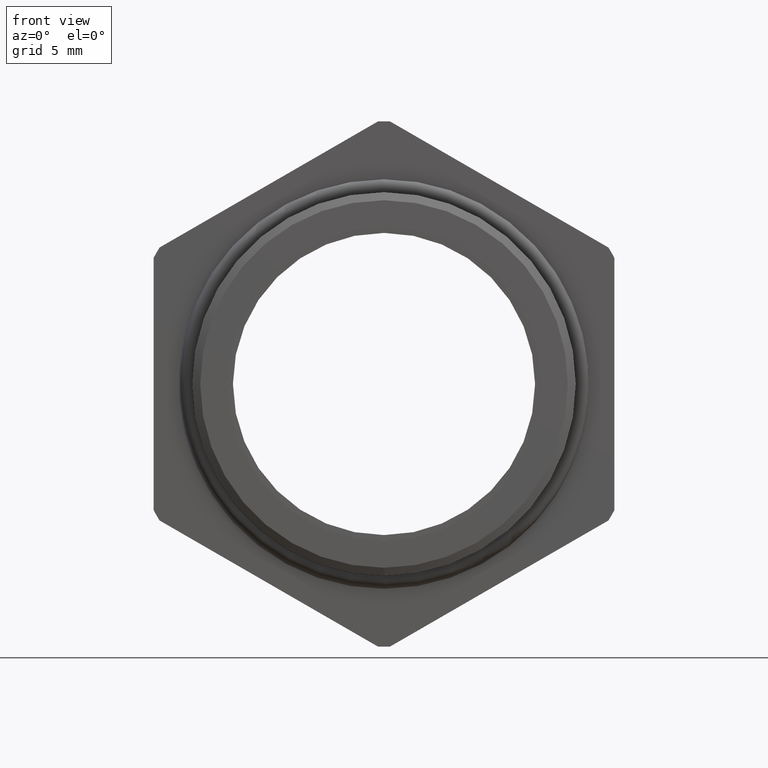
[diagram: clean part render]
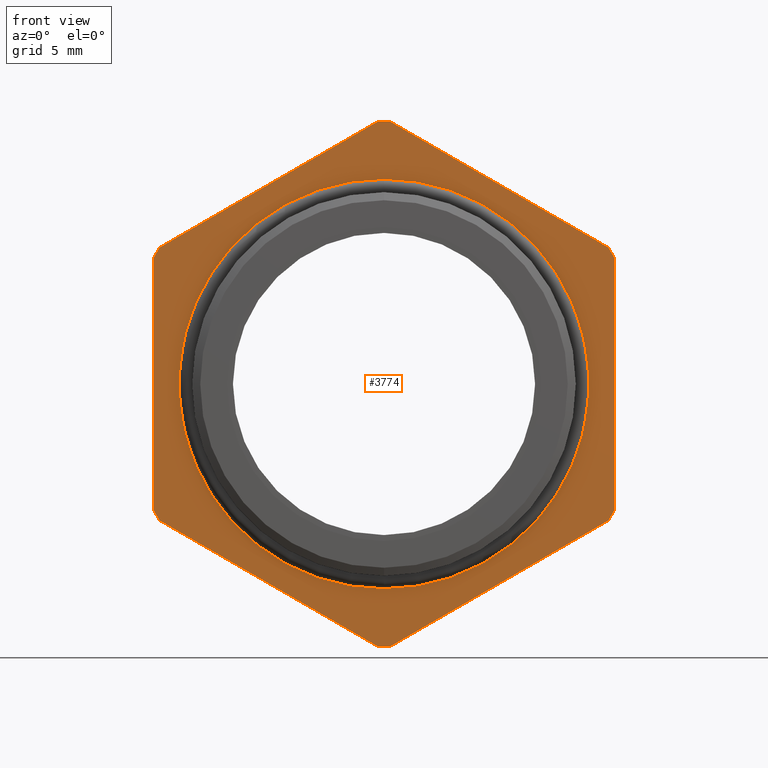
[diagram: same view with one face highlighted and labeled with its STEP entity id]
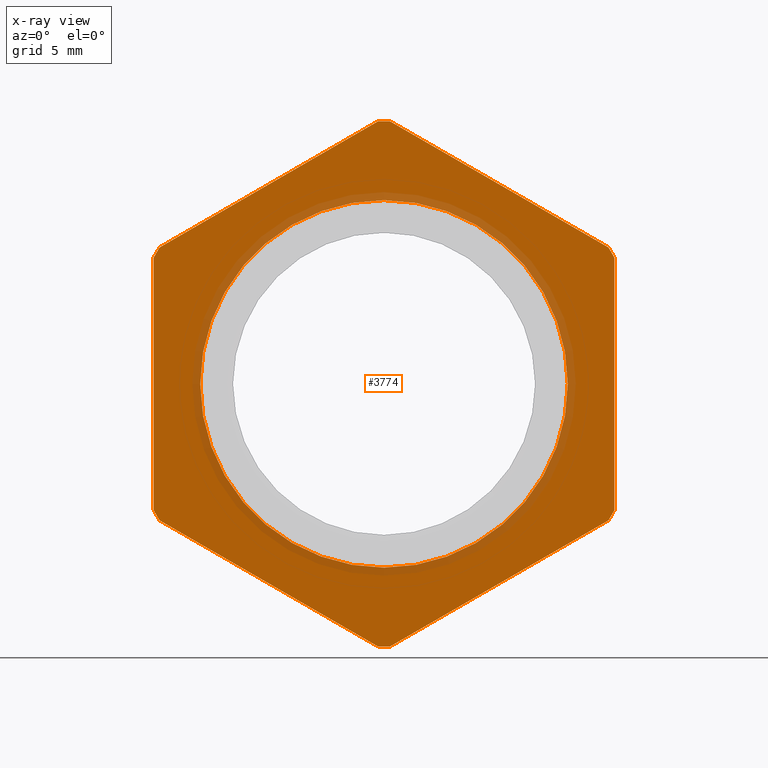
[diagram: x-ray of the same camera — body ghosted, the highlighted face saturated]
A machine part, front view. The second image highlights one B-rep face of the part: STEP entity #3774.
The next image is the same camera in x-ray: the body ghosted, the highlighted face saturated — about 12% of this face is hidden behind the body in this view.
In plain terms, the highlighted planar face has unit normal (0, -1, -0).
Its self-contained STEP definition (entity closure, byte-faithful):
#1259 = CARTESIAN_POINT ( 'NONE',  ( 0.3949999999999999100, 0.2775548905829479700, 0.2162061284977834200 ) ) ;
#1312 = DIRECTION ( 'NONE',  ( 0.0000000000000000000, 0.0000000000000000000, -1.000000000000000000 ) ) ;
#1313 = DIRECTION ( 'NONE',  ( -0.0000000000000000000, -1.000000000000000000, -0.0000000000000000000 ) ) ;
#1314 = CARTESIAN_POINT ( 'NONE',  ( 0.0000000000000000000, 0.2775548905829479700, 0.0000000000000000000 ) ) ;
#1315 = AXIS2_PLACEMENT_3D ( 'NONE', #1314, #1313, #1312 ) ;
#1316 = CIRCLE ( 'NONE', #1315, 0.4502999999999999800 ) ;
#1317 = CARTESIAN_POINT ( 'NONE',  ( 0.01026000026703700000, 0.2775548905829479700, -0.4501830987437449600 ) ) ;
#1336 = CARTESIAN_POINT ( 'NONE',  ( 0.0000000000000000000, 0.2775548905829479700, 0.0000000000000000000 ) ) ;
#1337 = CARTESIAN_POINT ( 'NONE',  ( 0.3950000000000000200, 0.2775548905829479700, -0.2162061284977832000 ) ) ;
#1349 = CARTESIAN_POINT ( 'NONE',  ( 0.3847399997329629100, 0.2775548905829479700, -0.2339769702459617300 ) ) ;
#1361 = CARTESIAN_POINT ( 'NONE',  ( -0.3949999999999999600, 0.2775548905829479700, -0.2162061284977833100 ) ) ;
#1377 = CARTESIAN_POINT ( 'NONE',  ( 0.3847399997329628600, 0.2775548905829479700, 0.2339769702459617900 ) ) ;
#1393 = DIRECTION ( 'NONE',  ( 0.0000000000000000000, 0.0000000000000000000, -1.000000000000000000 ) ) ;
#1394 = DIRECTION ( 'NONE',  ( -0.0000000000000000000, -1.000000000000000000, -0.0000000000000000000 ) ) ;
#1395 = AXIS2_PLACEMENT_3D ( 'NONE', #1336, #1394, #1393 ) ;
#1396 = CIRCLE ( 'NONE', #1395, 0.4502999999999999800 ) ;
#1409 = DIRECTION ( 'NONE',  ( 0.0000000000000000000, 0.0000000000000000000, -1.000000000000000000 ) ) ;
#1410 = DIRECTION ( 'NONE',  ( -0.0000000000000000000, -1.000000000000000000, -0.0000000000000000000 ) ) ;
#1411 = CARTESIAN_POINT ( 'NONE',  ( 0.0000000000000000000, 0.2775548905829479700, 0.0000000000000000000 ) ) ;
#1412 = AXIS2_PLACEMENT_3D ( 'NONE', #1411, #1410, #1409 ) ;
#1413 = CIRCLE ( 'NONE', #1412, 0.4502999999999999800 ) ;
#1414 = CARTESIAN_POINT ( 'NONE',  ( -0.3847399997329630200, 0.2775548905829479700, -0.2339769702459614800 ) ) ;
#1435 = CARTESIAN_POINT ( 'NONE',  ( -0.01026000026703716000, 0.2775548905829479700, -0.4501830987437449600 ) ) ;
#1436 = DIRECTION ( 'NONE',  ( 0.0000000000000000000, 0.0000000000000000000, -1.000000000000000000 ) ) ;
#1437 = DIRECTION ( 'NONE',  ( -0.0000000000000000000, -1.000000000000000000, -0.0000000000000000000 ) ) ;
#1438 = CARTESIAN_POINT ( 'NONE',  ( 0.0000000000000000000, 0.2775548905829479700, 0.0000000000000000000 ) ) ;
#1439 = AXIS2_PLACEMENT_3D ( 'NONE', #1438, #1437, #1436 ) ;
#1440 = CIRCLE ( 'NONE', #1439, 0.4502999999999999800 ) ;
#1477 = DIRECTION ( 'NONE',  ( 0.0000000000000000000, 0.0000000000000000000, -1.000000000000000000 ) ) ;
#1478 = DIRECTION ( 'NONE',  ( -0.0000000000000000000, -1.000000000000000000, -0.0000000000000000000 ) ) ;
#1479 = CARTESIAN_POINT ( 'NONE',  ( 0.0000000000000000000, 0.2775548905829479700, 0.0000000000000000000 ) ) ;
#1480 = AXIS2_PLACEMENT_3D ( 'NONE', #1479, #1478, #1477 ) ;
#1481 = CIRCLE ( 'NONE', #1480, 0.4502999999999999800 ) ;
#1482 = CARTESIAN_POINT ( 'NONE',  ( 0.0000000000000000000, 0.2775548905829479700, -0.4502999999999999800 ) ) ;
#1497 = DIRECTION ( 'NONE',  ( -2.994746533912406200E-016, 0.0000000000000000000, 1.000000000000000000 ) ) ;
#1498 = VECTOR ( 'NONE', #1497, 39.37007874015748100 ) ;
#1507 = CARTESIAN_POINT ( 'NONE',  ( 0.3949999999999999600, 0.2775548905829479700, 2.395797227129924000E-017 ) ) ;
#1508 = LINE ( 'NONE', #1507, #1498 ) ;
#1521 = DIRECTION ( 'NONE',  ( 0.8660254037844386000, 0.0000000000000000000, 0.4999999999999998300 ) ) ;
#1522 = VECTOR ( 'NONE', #1521, 39.37007874015748900 ) ;
#1523 = CARTESIAN_POINT ( 'NONE',  ( 0.4337499999999999700, 0.2775548905829479700, -0.2056810333988042500 ) ) ;
#1530 = LINE ( 'NONE', #1523, #1522 ) ;
#1554 = DIRECTION ( 'NONE',  ( 0.0000000000000000000, 0.0000000000000000000, -1.000000000000000000 ) ) ;
#1555 = DIRECTION ( 'NONE',  ( -0.0000000000000000000, -1.000000000000000000, -0.0000000000000000000 ) ) ;
#1556 = CARTESIAN_POINT ( 'NONE',  ( 0.0000000000000000000, 0.2775548905829479700, 0.0000000000000000000 ) ) ;
#1557 = AXIS2_PLACEMENT_3D ( 'NONE', #1556, #1555, #1554 ) ;
#1558 = CIRCLE ( 'NONE', #1557, 0.4502999999999999800 ) ;
#1559 = CARTESIAN_POINT ( 'NONE',  ( -0.01026000026703719400, 0.2775548905829479700, 0.4501830987437449000 ) ) ;
#1570 = CARTESIAN_POINT ( 'NONE',  ( 0.01026000026703743400, 0.2775548905829479700, 0.4501830987437449600 ) ) ;
#1581 = LINE ( 'NONE', #1626, #1625 ) ;
#1596 = DIRECTION ( 'NONE',  ( 0.0000000000000000000, 0.0000000000000000000, -1.000000000000000000 ) ) ;
#1597 = VECTOR ( 'NONE', #1596, 39.37007874015748100 ) ;
#1598 = CARTESIAN_POINT ( 'NONE',  ( -0.3949999999999999600, 0.2775548905829479700, 0.0000000000000000000 ) ) ;
#1599 = LINE ( 'NONE', #1598, #1597 ) ;
#1607 = DIRECTION ( 'NONE',  ( -0.8660254037844386000, 0.0000000000000000000, -0.4999999999999998300 ) ) ;
#1608 = VECTOR ( 'NONE', #1607, 39.37007874015748900 ) ;
#1615 = CARTESIAN_POINT ( 'NONE',  ( 0.03875000000000002700, 0.2775548905829479700, 0.4784790355909024400 ) ) ;
#1616 = LINE ( 'NONE', #1615, #1608 ) ;
#1624 = DIRECTION ( 'NONE',  ( 0.8660254037844386000, 0.0000000000000000000, -0.5000000000000002200 ) ) ;
#1625 = VECTOR ( 'NONE', #1624, 39.37007874015747400 ) ;
#1626 = CARTESIAN_POINT ( 'NONE',  ( 0.03874999999999989600, 0.2775548905829479700, -0.4784790355909022700 ) ) ;
#1629 = CARTESIAN_POINT ( 'NONE',  ( 0.4337500000000000200, 0.2775548905829479700, 0.2056810333988042200 ) ) ;
#1630 = LINE ( 'NONE', #1629, #1639 ) ;
#1638 = DIRECTION ( 'NONE',  ( -0.8660254037844386000, 0.0000000000000000000, 0.5000000000000002200 ) ) ;
#1639 = VECTOR ( 'NONE', #1638, 39.37007874015747400 ) ;
#1685 = DIRECTION ( 'NONE',  ( 0.0000000000000000000, 0.0000000000000000000, -1.000000000000000000 ) ) ;
#1686 = DIRECTION ( 'NONE',  ( -0.0000000000000000000, -1.000000000000000000, -0.0000000000000000000 ) ) ;
#1687 = CARTESIAN_POINT ( 'NONE',  ( 0.0000000000000000000, 0.2775548905829479700, 0.0000000000000000000 ) ) ;
#1688 = AXIS2_PLACEMENT_3D ( 'NONE', #1687, #1686, #1685 ) ;
#1689 = CIRCLE ( 'NONE', #1688, 0.4502999999999999800 ) ;
#1691 = CARTESIAN_POINT ( 'NONE',  ( -0.3949999999999999600, 0.2775548905829479700, 0.2162061284977833100 ) ) ;
#1703 = CARTESIAN_POINT ( 'NONE',  ( -0.3847399997329628000, 0.2775548905829479700, 0.2339769702459618100 ) ) ;
#3008 = CARTESIAN_POINT ( 'NONE',  ( 3.857637417314162700E-017, 0.2775548905829479700, 0.3150000000000000000 ) ) ;
#3009 = CARTESIAN_POINT ( 'NONE',  ( 0.0000000000000000000, 0.2775548905829479700, -0.3150000000000000000 ) ) ;
#3010 = DIRECTION ( 'NONE',  ( 0.0000000000000000000, 0.0000000000000000000, -1.000000000000000000 ) ) ;
#3011 = DIRECTION ( 'NONE',  ( -0.0000000000000000000, -1.000000000000000000, -0.0000000000000000000 ) ) ;
#3012 = CARTESIAN_POINT ( 'NONE',  ( 0.0000000000000000000, 0.2775548905829479700, 0.0000000000000000000 ) ) ;
#3013 = AXIS2_PLACEMENT_3D ( 'NONE', #3012, #3011, #3010 ) ;
#3014 = CIRCLE ( 'NONE', #3013, 0.3150000000000000000 ) ;
#3762 = ORIENTED_EDGE ( 'NONE', *, *, #4764, .T. ) ;
#3763 = ORIENTED_EDGE ( 'NONE', *, *, #4810, .T. ) ;
#3764 = ORIENTED_EDGE ( 'NONE', *, *, #4749, .T. ) ;
#3765 = ORIENTED_EDGE ( 'NONE', *, *, #4664, .T. ) ;
#3774 = ADVANCED_FACE ( 'NONE', ( #5822, #5821 ), #5820, .T. ) ;
#3775 = EDGE_LOOP ( 'NONE', ( #3776, #3777 ) ) ;
#3776 = ORIENTED_EDGE ( 'NONE', *, *, #6100, .F. ) ;
#3777 = ORIENTED_EDGE ( 'NONE', *, *, #3820, .F. ) ;
#3778 = EDGE_LOOP ( 'NONE', ( #3834, #3835, #3836, #3837, #3838, #3762, #3763, #3764, #3765, #3779, #3780, #3781, #3782 ) ) ;
#3779 = ORIENTED_EDGE ( 'NONE', *, *, #4758, .T. ) ;
#3780 = ORIENTED_EDGE ( 'NONE', *, *, #4682, .T. ) ;
#3781 = ORIENTED_EDGE ( 'NONE', *, *, #4623, .T. ) ;
#3782 = ORIENTED_EDGE ( 'NONE', *, *, #4722, .T. ) ;
#3820 = EDGE_CURVE ( 'NONE', #6102, #6101, #5873, .T. ) ;
#3834 = ORIENTED_EDGE ( 'NONE', *, *, #4642, .T. ) ;
#3835 = ORIENTED_EDGE ( 'NONE', *, *, #4709, .T. ) ;
#3836 = ORIENTED_EDGE ( 'NONE', *, *, #4691, .T. ) ;
#3837 = ORIENTED_EDGE ( 'NONE', *, *, #4779, .T. ) ;
#3838 = ORIENTED_EDGE ( 'NONE', *, *, #4737, .T. ) ;
#4586 = VERTEX_POINT ( 'NONE', #1259 ) ;
#4621 = VERTEX_POINT ( 'NONE', #1317 ) ;
#4623 = EDGE_CURVE ( 'NONE', #4688, #4621, #1316, .T. ) ;
#4628 = VERTEX_POINT ( 'NONE', #1361 ) ;
#4633 = VERTEX_POINT ( 'NONE', #1349 ) ;
#4640 = VERTEX_POINT ( 'NONE', #1337 ) ;
#4642 = EDGE_CURVE ( 'NONE', #4633, #4640, #1396, .T. ) ;
#4652 = VERTEX_POINT ( 'NONE', #1377 ) ;
#4662 = VERTEX_POINT ( 'NONE', #1414 ) ;
#4664 = EDGE_CURVE ( 'NONE', #4628, #4662, #1413, .T. ) ;
#4682 = EDGE_CURVE ( 'NONE', #4683, #4688, #1440, .T. ) ;
#4683 = VERTEX_POINT ( 'NONE', #1435 ) ;
#4688 = VERTEX_POINT ( 'NONE', #1482 ) ;
#4691 = EDGE_CURVE ( 'NONE', #4586, #4652, #1481, .T. ) ;
#4709 = EDGE_CURVE ( 'NONE', #4640, #4586, #1508, .T. ) ;
#4722 = EDGE_CURVE ( 'NONE', #4621, #4633, #1530, .T. ) ;
#4728 = VERTEX_POINT ( 'NONE', #1570 ) ;
#4735 = VERTEX_POINT ( 'NONE', #1559 ) ;
#4737 = EDGE_CURVE ( 'NONE', #4728, #4735, #1558, .T. ) ;
#4749 = EDGE_CURVE ( 'NONE', #4808, #4628, #1599, .T. ) ;
#4758 = EDGE_CURVE ( 'NONE', #4662, #4683, #1581, .T. ) ;
#4764 = EDGE_CURVE ( 'NONE', #4735, #4801, #1616, .T. ) ;
#4779 = EDGE_CURVE ( 'NONE', #4652, #4728, #1630, .T. ) ;
#4801 = VERTEX_POINT ( 'NONE', #1703 ) ;
#4808 = VERTEX_POINT ( 'NONE', #1691 ) ;
#4810 = EDGE_CURVE ( 'NONE', #4801, #4808, #1689, .T. ) ;
#5815 = DIRECTION ( 'NONE',  ( 0.0000000000000000000, 0.0000000000000000000, -1.000000000000000000 ) ) ;
#5816 = DIRECTION ( 'NONE',  ( 0.0000000000000000000, -1.000000000000000000, -0.0000000000000000000 ) ) ;
#5817 = AXIS2_PLACEMENT_3D ( 'NONE', #5819, #5816, #5815 ) ;
#5819 = CARTESIAN_POINT ( 'NONE',  ( 0.3150000000000000000, 0.2775548905829479700, 0.0000000000000000000 ) ) ;
#5820 = PLANE ( 'NONE',  #5817 ) ;
#5821 = FACE_OUTER_BOUND ( 'NONE', #3778, .T. ) ;
#5822 = FACE_BOUND ( 'NONE', #3775, .T. ) ;
#5869 = DIRECTION ( 'NONE',  ( 0.0000000000000000000, 0.0000000000000000000, -1.000000000000000000 ) ) ;
#5870 = DIRECTION ( 'NONE',  ( -0.0000000000000000000, -1.000000000000000000, -0.0000000000000000000 ) ) ;
#5871 = CARTESIAN_POINT ( 'NONE',  ( 0.0000000000000000000, 0.2775548905829479700, 0.0000000000000000000 ) ) ;
#5872 = AXIS2_PLACEMENT_3D ( 'NONE', #5871, #5870, #5869 ) ;
#5873 = CIRCLE ( 'NONE', #5872, 0.3150000000000000000 ) ;
#6100 = EDGE_CURVE ( 'NONE', #6101, #6102, #3014, .T. ) ;
#6101 = VERTEX_POINT ( 'NONE', #3009 ) ;
#6102 = VERTEX_POINT ( 'NONE', #3008 ) ;